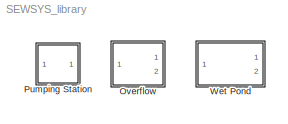
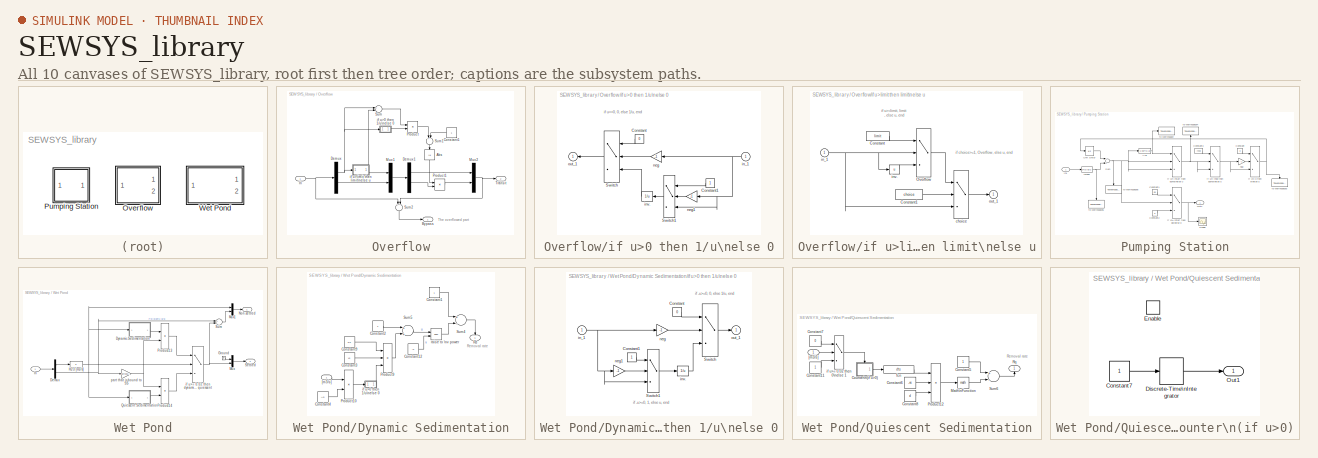
[diagram: thumbnail index - all 10 canvases of the model, root first then tree order]
MODEL SEWSYS_library
KIND library
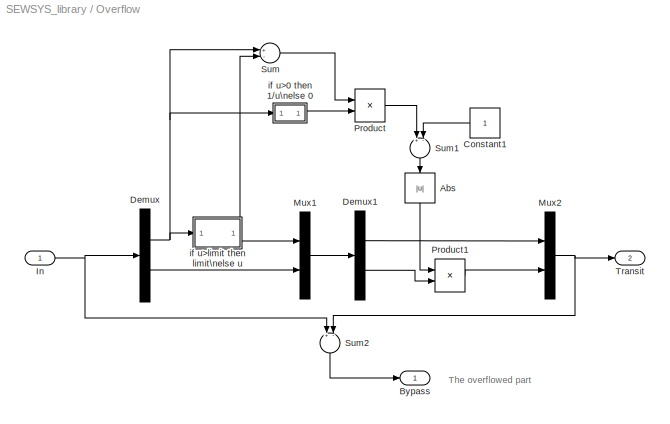
BLOCK [SubSystem] Overflow
  MaskCallbackString = |
  MaskDescription = Models an overflow
  MaskEnableString = on,on
  MaskHelp = To model an overflow:\nFirst make the overflow active by the checkbox. Then enter the Overflow limit, ie the discharge threshold for which the overflow starts diverting. The signal from the first outport contains the bypassed part, the second outport the transit part.
  MaskIconFrame = on
  MaskIconOpaque = on
  MaskIconRotate = none
  MaskIconUnits = autoscale
  MaskPromptString = Overflow active|Overflow limit [m3/s]
  MaskStyleString = checkbox,edit
  MaskTabNameString = ,
  MaskToolTipString = on,on
  MaskTunableValueString = on,on
  MaskType = Overflow
  MaskValueString = off|0
  MaskVarAliasString = ,
  MaskVariables = choice=@1;limit=@2;
  MaskVisibilityString = on,on
  MinAlgLoopOccurrences = off
  Ports = [1, 2]
  RTWSystemCode = Auto
  TreatAsAtomicUnit = off
BLOCK [Abs] Overflow/Abs
BLOCK [Outport] Overflow/Bypass
  IconDisplay = Port number
BLOCK [Constant] Overflow/Constant1
BLOCK [Demux] Overflow/Demux
  Outputs = [1 -1]
  Ports = [1, 2]
BLOCK [Demux] Overflow/Demux1
  Outputs = [1 -1]
  Ports = [1, 2]
BLOCK [Inport] Overflow/In
  IconDisplay = Port number
  LatchInput = off
  Port = 1
BLOCK [Mux] Overflow/Mux1
  DisplayOption = bar
  Inputs = 2
  Ports = [2, 1]
BLOCK [Mux] Overflow/Mux2
  DisplayOption = bar
  Inputs = 2
  Ports = [2, 1]
BLOCK [Product] Overflow/Product
  Ports = [2, 1]
  RndMeth = Floor
BLOCK [Product] Overflow/Product1
  Ports = [2, 1]
  RndMeth = Floor
BLOCK [Sum] Overflow/Sum
  Inputs = +-
  Ports = [2, 1]
BLOCK [Sum] Overflow/Sum1
  Inputs = +-
  Ports = [2, 1]
BLOCK [Sum] Overflow/Sum2
  Inputs = +-
  Ports = [2, 1]
BLOCK [Outport] Overflow/Transit
  IconDisplay = Port number
  Port = 2
BLOCK [SubSystem] Overflow/if u>0 then 1//u\nelse 0
  MaskDisplay = disp('1/u')
  MaskIconFrame = on
  MaskIconOpaque = on
  MaskIconRotate = none
  MaskIconUnits = autoscale
  MinAlgLoopOccurrences = off
  Ports = [1, 1]
  RTWSystemCode = Auto
  ShowPortLabels = off
  TreatAsAtomicUnit = off
BLOCK [Constant] Overflow/if u>0 then 1//u\nelse 0/Constant
  Value = 0
BLOCK [Constant] Overflow/if u>0 then 1//u\nelse 0/Constant1
BLOCK [Switch] Overflow/if u>0 then 1//u\nelse 0/Switch
BLOCK [Switch] Overflow/if u>0 then 1//u\nelse 0/Switch1
BLOCK [Inport] Overflow/if u>0 then 1//u\nelse 0/in_1
  IconDisplay = Port number
  LatchInput = off
  Port = 1
BLOCK [Fcn] Overflow/if u>0 then 1//u\nelse 0/inv.
  Expr = 1/u
BLOCK [Gain] Overflow/if u>0 then 1//u\nelse 0/neg
  Gain = -1
BLOCK [Gain] Overflow/if u>0 then 1//u\nelse 0/neg1
  Gain = -1
BLOCK [Outport] Overflow/if u>0 then 1//u\nelse 0/out_1
  IconDisplay = Port number
  InitialOutput = 0
BLOCK [SubSystem] Overflow/if u>limit then limit\nelse u
  MaskDisplay = disp('Overflow')
  MaskIconFrame = on
  MaskIconOpaque = on
  MaskIconRotate = none
  MaskIconUnits = autoscale
  MinAlgLoopOccurrences = off
  Ports = [1, 1]
  RTWSystemCode = Auto
  TreatAsAtomicUnit = off
BLOCK [Constant] Overflow/if u>limit then limit\nelse u/Constant
  Value = limit
BLOCK [Constant] Overflow/if u>limit then limit\nelse u/Constant1
  Value = choice
BLOCK [Switch] Overflow/if u>limit then limit\nelse u/Overflow
  Threshold = limit
BLOCK [Switch] Overflow/if u>limit then limit\nelse u/choice
  Threshold = 1
BLOCK [Inport] Overflow/if u>limit then limit\nelse u/in_1
  IconDisplay = Port number
  LatchInput = off
  Port = 1
BLOCK [Fcn] Overflow/if u>limit then limit\nelse u/inv.
  Expr = u
BLOCK [Outport] Overflow/if u>limit then limit\nelse u/out_1
  IconDisplay = Port number
  InitialOutput = 0
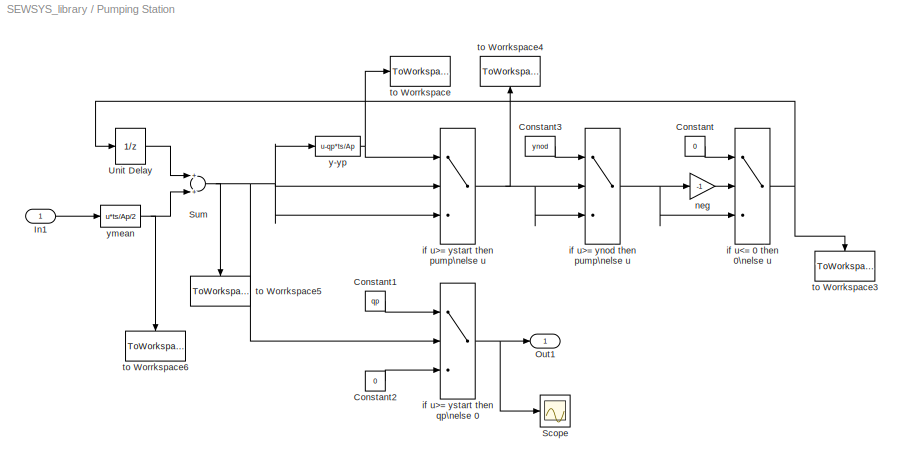
BLOCK [SubSystem] Pumping Station
  MaskCallbackString = ||||
  MaskDescription = Models a pumping station.
  MaskDisplay = plot([0 1 5 6], [0 0 4 4])
  MaskEnableString = on,on,on,on,on
  MaskHelp = Enter the parameters
  MaskIconFrame = on
  MaskIconOpaque = on
  MaskIconRotate = none
  MaskIconUnits = autoscale
  MaskPromptString = Pump Capacity [m³/s]|Pumping Pit Area [m²]|Start Level [m] (Stop Level is ±0 m)|Emergency Overflow Level [m]|Seconds per Timestep (DO NOT CHANGE THIS!)
  MaskStyleString = edit,edit,edit,edit,edit
  MaskTabNameString = ,,,,
  MaskToolTipString = on,on,on,on,on
  MaskTunableValueString = on,on,on,on,on
  MaskType = Pump
  MaskValueString = ||||sec_per_ts
  MaskVarAliasString = ,,,,
  MaskVariables = qp=@1;Ap=@2;ystart=@3;ynod=@4;ts=@5;
  MaskVisibilityString = on,on,on,on,on
  MinAlgLoopOccurrences = off
  Ports = [1, 1]
  RTWSystemCode = Auto
  TreatAsAtomicUnit = off
BLOCK [Constant] Pumping Station/Constant
  Value = 0
BLOCK [Constant] Pumping Station/Constant1
  Value = qp
BLOCK [Constant] Pumping Station/Constant2
  Value = 0
BLOCK [Constant] Pumping Station/Constant3
  Value = ynod
BLOCK [Inport] Pumping Station/In1
  IconDisplay = Port number
  LatchInput = off
  Port = 1
BLOCK [Outport] Pumping Station/Out1
  IconDisplay = Port number
BLOCK [Scope] Pumping Station/Scope
  DataFormat = StructureWithTime
  NumInputPorts = 1
  Ports = [1]
BLOCK [Sum] Pumping Station/Sum
  Ports = [2, 1]
BLOCK [UnitDelay] Pumping Station/Unit Delay
BLOCK [Switch] Pumping Station/if u<= 0 then 0\nelse u
BLOCK [Switch] Pumping Station/if u>= ynod then pump\nelse u
  Threshold = ynod
BLOCK [Switch] Pumping Station/if u>= ystart then pump\nelse u
  Threshold = ystart
BLOCK [Switch] Pumping Station/if u>= ystart then qp\nelse 0
  Threshold = ystart
BLOCK [Gain] Pumping Station/neg
  Gain = -1
BLOCK [ToWorkspace] Pumping Station/to Worrkspace
  MaxDataPoints = inf
  SampleTime = -1
  SaveFormat = Array
  VariableName = yprim
BLOCK [ToWorkspace] Pumping Station/to Worrkspace3
  MaxDataPoints = inf
  SampleTime = -1
  SaveFormat = Array
  VariableName = y
BLOCK [ToWorkspace] Pumping Station/to Worrkspace4
  MaxDataPoints = inf
  SampleTime = -1
  SaveFormat = Array
  VariableName = ytest
BLOCK [ToWorkspace] Pumping Station/to Worrkspace5
  MaxDataPoints = inf
  SampleTime = -1
  SaveFormat = Array
  VariableName = yin
BLOCK [ToWorkspace] Pumping Station/to Worrkspace6
  MaxDataPoints = inf
  SampleTime = -1
  SaveFormat = Array
  VariableName = ymean
BLOCK [Fcn] Pumping Station/y-yp
  Expr = u-qp*ts/Ap
BLOCK [Fcn] Pumping Station/ymean
  Expr = u*ts/Ap/2
BLOCK [SubSystem] Wet Pond
  MaskCallbackString = |||||
  MaskEnableString = on,on,on,on,on,off
  MaskIconFrame = on
  MaskIconOpaque = on
  MaskIconRotate = none
  MaskIconUnits = autoscale
  MaskInitialization = partboundSS=[ ;% uncertain values, calculated from measurements (Pettersson et al, 1999 p.870)\n   0.57      ;% P-tot\n   0.10      ;% Tot-N\n   0         ;% NH3/NH4-N\n   0         ;% NO3-N\n   0         ;% N2O-N\n   0         ;% SS\n   0.57      ;% BOD\n   0         ;% COD\n   0         ;% C-tot\n   0         ;% Phase index\n   0.43      ;% Cu\n   0.43      ;% Zn\n   0.71      ;% Pb\n   0.16    ...<+166ch>
  MaskPromptString = Pond Area [m2]|Average pond depth [m]|Turbulence constant, n=1 poor performance (variable inflow)|Average settling velocity [m/s]|Limit for dynamic settling [m3/s]|Seconds per Timestep (DO NOT CHANGE THIS!)
  MaskSelfModifiable = on
  MaskStyleString = edit,edit,edit,edit,edit,edit
  MaskTabNameString = ,,,,,
  MaskToolTipString = on,on,on,on,on,on
  MaskTunableValueString = on,on,on,on,on,on
  MaskType = Wet Pond
  MaskValueString = 0|0|1|1.4977e-004|0.02|sec_per_ts
  MaskVarAliasString = ,,,,,
  MaskVariables = Ap=@1;d=@2;n=@3;vs=@4;q_threshold=@5;ts=@6;
  MaskVisibilityString = on,on,on,on,on,on
  MinAlgLoopOccurrences = off
  Ports = [1, 2]
  RTWSystemCode = Auto
  TreatAsAtomicUnit = off
BLOCK [Demux] Wet Pond/Demux
  Outputs = [1 -1]
  Ports = [1, 2]
BLOCK [SubSystem] Wet Pond/Dynamic Sedimentation
  MinAlgLoopOccurrences = off
  Ports = [1, 1]
  RTWSystemCode = Auto
  TreatAsAtomicUnit = off
BLOCK [Constant] Wet Pond/Dynamic Sedimentation/Constant1
BLOCK [Constant] Wet Pond/Dynamic Sedimentation/Constant12
  Value = -n
BLOCK [Constant] Wet Pond/Dynamic Sedimentation/Constant2
BLOCK [Constant] Wet Pond/Dynamic Sedimentation/Constant3
  Value = vs
BLOCK [Constant] Wet Pond/Dynamic Sedimentation/Constant4
  Value = Ap
BLOCK [Constant] Wet Pond/Dynamic Sedimentation/Constant9
  Value = 1/n
BLOCK [Product] Wet Pond/Dynamic Sedimentation/Product10
  Inputs = */
  Ports = [2, 1]
  RndMeth = Floor
BLOCK [Product] Wet Pond/Dynamic Sedimentation/Product9
  Inputs = 3
  Ports = [3, 1]
  RndMeth = Floor
BLOCK [Outport] Wet Pond/Dynamic Sedimentation/Rd
  IconDisplay = Port number
BLOCK [Sum] Wet Pond/Dynamic Sedimentation/Sum4
  Inputs = +-
  Ports = [2, 1]
BLOCK [Sum] Wet Pond/Dynamic Sedimentation/Sum5
  Ports = [2, 1]
BLOCK [Inport] Wet Pond/Dynamic Sedimentation/[m3//s]
  IconDisplay = Port number
  LatchInput = off
  Port = 1
BLOCK [SubSystem] Wet Pond/Dynamic Sedimentation/if u>0 then 1//u\nelse 0
  MaskDisplay = disp('1/u')
  MaskIconFrame = on
  MaskIconOpaque = on
  MaskIconRotate = none
  MaskIconUnits = autoscale
  MinAlgLoopOccurrences = off
  Ports = [1, 1]
  RTWSystemCode = Auto
  ShowPortLabels = off
  TreatAsAtomicUnit = off
BLOCK [Constant] Wet Pond/Dynamic Sedimentation/if u>0 then 1//u\nelse 0/Constant
  Value = 0
BLOCK [Constant] Wet Pond/Dynamic Sedimentation/if u>0 then 1//u\nelse 0/Constant1
BLOCK [Switch] Wet Pond/Dynamic Sedimentation/if u>0 then 1//u\nelse 0/Switch
BLOCK [Switch] Wet Pond/Dynamic Sedimentation/if u>0 then 1//u\nelse 0/Switch1
BLOCK [Inport] Wet Pond/Dynamic Sedimentation/if u>0 then 1//u\nelse 0/in_1
  IconDisplay = Port number
  LatchInput = off
  Port = 1
BLOCK [Fcn] Wet Pond/Dynamic Sedimentation/if u>0 then 1//u\nelse 0/inv.
  Expr = 1/u
BLOCK [Gain] Wet Pond/Dynamic Sedimentation/if u>0 then 1//u\nelse 0/neg
  Gain = -1
BLOCK [Gain] Wet Pond/Dynamic Sedimentation/if u>0 then 1//u\nelse 0/neg1
  Gain = -1
BLOCK [Outport] Wet Pond/Dynamic Sedimentation/if u>0 then 1//u\nelse 0/out_1
  IconDisplay = Port number
  InitialOutput = 0
BLOCK [Math] Wet Pond/Dynamic Sedimentation/raise to \nv power
  Operator = pow
  Ports = [2, 1]
BLOCK [Ground] Wet Pond/Ground
BLOCK [Fcn] Wet Pond/H2O [m3//s]
  Expr = u
BLOCK [Inport] Wet Pond/In
  IconDisplay = Port number
  LatchInput = off
  Port = 1
BLOCK [Mux] Wet Pond/Mux
  DisplayOption = bar
  Inputs = 2
  Ports = [2, 1]
BLOCK [Mux] Wet Pond/Mux1
  DisplayOption = bar
  Inputs = 2
  Ports = [2, 1]
BLOCK [Outport] Wet Pond/Non-settled
  IconDisplay = Port number
BLOCK [Product] Wet Pond/Product13
  Ports = [2, 1]
  RndMeth = Floor
BLOCK [Product] Wet Pond/Product14
  Ports = [2, 1]
  RndMeth = Floor
BLOCK [SubSystem] Wet Pond/Quiescent Sedimentation
  MinAlgLoopOccurrences = off
  Ports = [1, 1]
  RTWSystemCode = Auto
  TreatAsAtomicUnit = off
BLOCK [Constant] Wet Pond/Quiescent Sedimentation/Constant11
BLOCK [Constant] Wet Pond/Quiescent Sedimentation/Constant5
BLOCK [Constant] Wet Pond/Quiescent Sedimentation/Constant6
  Value = -vs
BLOCK [Constant] Wet Pond/Quiescent Sedimentation/Constant7
  Value = 0
BLOCK [Constant] Wet Pond/Quiescent Sedimentation/Constant8
  Value = d
BLOCK [SubSystem] Wet Pond/Quiescent Sedimentation/Counter\n(if u>0)
  MinAlgLoopOccurrences = off
  Ports = [0, 1, 1]
  RTWSystemCode = Auto
  TreatAsAtomicUnit = on
BLOCK [Constant] Wet Pond/Quiescent Sedimentation/Counter\n(if u>0)/Constant7
BLOCK [DiscreteIntegrator] Wet Pond/Quiescent Sedimentation/Counter\n(if u>0)/Discrete-Time\nIntegrator
  ExternalReset = none
  ICPrevOutput = DiscIntNeverNeededParam
  ICPrevScaledInput = DiscIntNeverNeededParam
  InitialCondition = 1
  InitialConditionSource = internal
  IntegratorMethod = Integration: Forward Euler
  Ports = [1, 1]
BLOCK [EnablePort] Wet Pond/Quiescent Sedimentation/Counter\n(if u>0)/Enable
  Ports = []
  StatesWhenEnabling = reset
BLOCK [Outport] Wet Pond/Quiescent Sedimentation/Counter\n(if u>0)/Out1
  IconDisplay = Port number
  InitialOutput = 0
BLOCK [Math] Wet Pond/Quiescent Sedimentation/Math\nFunction
  Ports = [1, 1]
BLOCK [Product] Wet Pond/Quiescent Sedimentation/Product12
  Inputs = **/
  Ports = [3, 1]
  RndMeth = Floor
BLOCK [Outport] Wet Pond/Quiescent Sedimentation/Rq
  IconDisplay = Port number
BLOCK [Sum] Wet Pond/Quiescent Sedimentation/Sum6
  Inputs = +-
  Ports = [2, 1]
BLOCK [Inport] Wet Pond/Quiescent Sedimentation/[m3//s]
  IconDisplay = Port number
  LatchInput = off
  Port = 1
BLOCK [Fcn] Wet Pond/Quiescent Sedimentation/fcn
  Expr = u*ts
BLOCK [Switch] Wet Pond/Quiescent Sedimentation/if u>= 0.02 then 0\nelse 1
  Threshold = q_threshold
BLOCK [Outport] Wet Pond/Settled
  IconDisplay = Port number
  Port = 2
BLOCK [Sum] Wet Pond/Sum
  Inputs = +-
  Ports = [2, 1]
BLOCK [Switch] Wet Pond/if u>= 0.02 then dynamic\nelse quiescent
  Threshold = q_threshold
BLOCK [Gain] Wet Pond/part that is bound to SS
  Gain = partboundSS
ANNOTATION Overflow: The overflowed part
ANNOTATION Overflow/if u>0 then 1//u\nelse 0: if u<=0, 0, else 1/u, end
ANNOTATION Overflow/if u>limit then limit\nelse u: if choice>=1, Overflow, else u, end
ANNOTATION Overflow/if u>limit then limit\nelse u: if u>=limit, limit\n, else u, end
ANNOTATION Wet Pond/Dynamic Sedimentation: Removal rate
ANNOTATION Wet Pond/Dynamic Sedimentation/if u>0 then 1//u\nelse 0: if -u>=0, 0, else 1/u, end
ANNOTATION Wet Pond/Dynamic Sedimentation/if u>0 then 1//u\nelse 0: if -u>=0, 1, else u, end
ANNOTATION Wet Pond/Quiescent Sedimentation: Removal rate
LINE Overflow/Abs:1 -> Overflow/Product1:1
LINE Overflow/Constant1:1 -> Overflow/Sum1:2
LINE Overflow/Demux1:1 -> Overflow/Mux2:1
LINE Overflow/Demux1:2 -> Overflow/Product1:2
NET Overflow/Demux:1 -> Overflow/Sum:1, Overflow/if u>0 then 1//u\nelse 0:1, Overflow/if u>limit then limit\nelse u:1
LINE Overflow/Demux:2 -> Overflow/Mux1:2
NET Overflow/In:1 -> Overflow/Demux:1, Overflow/Sum2:1
LINE Overflow/Mux1:1 -> Overflow/Demux1:1
NET Overflow/Mux2:1 -> Overflow/Sum2:2, Overflow/Transit:1
LINE Overflow/Product1:1 -> Overflow/Mux2:2
LINE Overflow/Product:1 -> Overflow/Sum1:1
LINE Overflow/Sum1:1 -> Overflow/Abs:1
LINE Overflow/Sum2:1 -> Overflow/Bypass:1
LINE Overflow/Sum:1 -> Overflow/Product:1
LINE Overflow/if u>0 then 1//u\nelse 0/Constant1:1 -> Overflow/if u>0 then 1//u\nelse 0/Switch1:1
LINE Overflow/if u>0 then 1//u\nelse 0/Constant:1 -> Overflow/if u>0 then 1//u\nelse 0/Switch:1
LINE Overflow/if u>0 then 1//u\nelse 0/Switch1:1 -> Overflow/if u>0 then 1//u\nelse 0/inv.:1
LINE Overflow/if u>0 then 1//u\nelse 0/Switch:1 -> Overflow/if u>0 then 1//u\nelse 0/out_1:1
NET Overflow/if u>0 then 1//u\nelse 0/in_1:1 -> Overflow/if u>0 then 1//u\nelse 0/Switch1:3, Overflow/if u>0 then 1//u\nelse 0/neg1:1, Overflow/if u>0 then 1//u\nelse 0/neg:1
LINE Overflow/if u>0 then 1//u\nelse 0/inv.:1 -> Overflow/if u>0 then 1//u\nelse 0/Switch:3
LINE Overflow/if u>0 then 1//u\nelse 0/neg1:1 -> Overflow/if u>0 then 1//u\nelse 0/Switch1:2
LINE Overflow/if u>0 then 1//u\nelse 0/neg:1 -> Overflow/if u>0 then 1//u\nelse 0/Switch:2
LINE Overflow/if u>0 then 1//u\nelse 0:1 -> Overflow/Product:2
LINE Overflow/if u>limit then limit\nelse u/Constant1:1 -> Overflow/if u>limit then limit\nelse u/choice:2
LINE Overflow/if u>limit then limit\nelse u/Constant:1 -> Overflow/if u>limit then limit\nelse u/Overflow:1
LINE Overflow/if u>limit then limit\nelse u/Overflow:1 -> Overflow/if u>limit then limit\nelse u/choice:1
LINE Overflow/if u>limit then limit\nelse u/choice:1 -> Overflow/if u>limit then limit\nelse u/out_1:1
NET Overflow/if u>limit then limit\nelse u/in_1:1 -> Overflow/if u>limit then limit\nelse u/Overflow:2, Overflow/if u>limit then limit\nelse u/choice:3, Overflow/if u>limit then limit\nelse u/inv.:1
LINE Overflow/if u>limit then limit\nelse u/inv.:1 -> Overflow/if u>limit then limit\nelse u/Overflow:3
NET Overflow/if u>limit then limit\nelse u:1 -> Overflow/Mux1:1, Overflow/Sum:2
LINE Pumping Station/Constant1:1 -> Pumping Station/if u>= ystart then qp\nelse 0:1
LINE Pumping Station/Constant2:1 -> Pumping Station/if u>= ystart then qp\nelse 0:3
LINE Pumping Station/Constant3:1 -> Pumping Station/if u>= ynod then pump\nelse u:1
LINE Pumping Station/Constant:1 -> Pumping Station/if u<= 0 then 0\nelse u:1
LINE Pumping Station/In1:1 -> Pumping Station/ymean:1
NET Pumping Station/Sum:1 -> Pumping Station/if u>= ystart then pump\nelse u:2, Pumping Station/if u>= ystart then pump\nelse u:3, Pumping Station/if u>= ystart then qp\nelse 0:2, Pumping Station/to Worrkspace5:1, Pumping Station/y-yp:1
LINE Pumping Station/Unit Delay:1 -> Pumping Station/Sum:1
NET Pumping Station/if u<= 0 then 0\nelse u:1 -> Pumping Station/Unit Delay:1, Pumping Station/to Worrkspace3:1
NET Pumping Station/if u>= ynod then pump\nelse u:1 -> Pumping Station/if u<= 0 then 0\nelse u:3, Pumping Station/neg:1
NET Pumping Station/if u>= ystart then pump\nelse u:1 -> Pumping Station/if u>= ynod then pump\nelse u:2, Pumping Station/if u>= ynod then pump\nelse u:3, Pumping Station/to Worrkspace4:1
NET Pumping Station/if u>= ystart then qp\nelse 0:1 -> Pumping Station/Out1:1, Pumping Station/Scope:1
LINE Pumping Station/neg:1 -> Pumping Station/if u<= 0 then 0\nelse u:2
NET Pumping Station/y-yp:1 -> Pumping Station/if u>= ystart then pump\nelse u:1, Pumping Station/to Worrkspace:1
NET Pumping Station/ymean:1 -> Pumping Station/Sum:2, Pumping Station/to Worrkspace6:1
LINE Wet Pond/Demux:1 -> Wet Pond/H2O [m3//s]:1
NET Wet Pond/Demux:2 -> Wet Pond/Sum:1, Wet Pond/part that is bound to SS:1
LINE Wet Pond/Dynamic Sedimentation/Constant12:1 -> Wet Pond/Dynamic Sedimentation/raise to \nv power:2
LINE Wet Pond/Dynamic Sedimentation/Constant1:1 -> Wet Pond/Dynamic Sedimentation/Sum4:1
LINE Wet Pond/Dynamic Sedimentation/Constant2:1 -> Wet Pond/Dynamic Sedimentation/Sum5:1
LINE Wet Pond/Dynamic Sedimentation/Constant3:1 -> Wet Pond/Dynamic Sedimentation/Product9:2
LINE Wet Pond/Dynamic Sedimentation/Constant4:1 -> Wet Pond/Dynamic Sedimentation/Product10:2
LINE Wet Pond/Dynamic Sedimentation/Constant9:1 -> Wet Pond/Dynamic Sedimentation/Product9:1
LINE Wet Pond/Dynamic Sedimentation/Product10:1 -> Wet Pond/Dynamic Sedimentation/if u>0 then 1//u\nelse 0:1
LINE Wet Pond/Dynamic Sedimentation/Product9:1 -> Wet Pond/Dynamic Sedimentation/Sum5:2
LINE Wet Pond/Dynamic Sedimentation/Sum4:1 -> Wet Pond/Dynamic Sedimentation/Rd:1
LINE Wet Pond/Dynamic Sedimentation/Sum5:1 -> Wet Pond/Dynamic Sedimentation/raise to \nv power:1
LINE Wet Pond/Dynamic Sedimentation/[m3//s]:1 -> Wet Pond/Dynamic Sedimentation/Product10:1
LINE Wet Pond/Dynamic Sedimentation/if u>0 then 1//u\nelse 0/Constant1:1 -> Wet Pond/Dynamic Sedimentation/if u>0 then 1//u\nelse 0/Switch1:1
LINE Wet Pond/Dynamic Sedimentation/if u>0 then 1//u\nelse 0/Constant:1 -> Wet Pond/Dynamic Sedimentation/if u>0 then 1//u\nelse 0/Switch:1
LINE Wet Pond/Dynamic Sedimentation/if u>0 then 1//u\nelse 0/Switch1:1 -> Wet Pond/Dynamic Sedimentation/if u>0 then 1//u\nelse 0/inv.:1
LINE Wet Pond/Dynamic Sedimentation/if u>0 then 1//u\nelse 0/Switch:1 -> Wet Pond/Dynamic Sedimentation/if u>0 then 1//u\nelse 0/out_1:1
NET Wet Pond/Dynamic Sedimentation/if u>0 then 1//u\nelse 0/in_1:1 -> Wet Pond/Dynamic Sedimentation/if u>0 then 1//u\nelse 0/Switch1:3, Wet Pond/Dynamic Sedimentation/if u>0 then 1//u\nelse 0/neg1:1, Wet Pond/Dynamic Sedimentation/if u>0 then 1//u\nelse 0/neg:1
LINE Wet Pond/Dynamic Sedimentation/if u>0 then 1//u\nelse 0/inv.:1 -> Wet Pond/Dynamic Sedimentation/if u>0 then 1//u\nelse 0/Switch:3
LINE Wet Pond/Dynamic Sedimentation/if u>0 then 1//u\nelse 0/neg1:1 -> Wet Pond/Dynamic Sedimentation/if u>0 then 1//u\nelse 0/Switch1:2
LINE Wet Pond/Dynamic Sedimentation/if u>0 then 1//u\nelse 0/neg:1 -> Wet Pond/Dynamic Sedimentation/if u>0 then 1//u\nelse 0/Switch:2
LINE Wet Pond/Dynamic Sedimentation/if u>0 then 1//u\nelse 0:1 -> Wet Pond/Dynamic Sedimentation/Product9:3
LINE Wet Pond/Dynamic Sedimentation/raise to \nv power:1 -> Wet Pond/Dynamic Sedimentation/Sum4:2
LINE Wet Pond/Dynamic Sedimentation:1 -> Wet Pond/Product13:1
LINE Wet Pond/Ground:1 -> Wet Pond/Mux:1
NET Wet Pond/H2O [m3//s]:1 -> Wet Pond/Dynamic Sedimentation:1, Wet Pond/Mux1:1, Wet Pond/Quiescent Sedimentation:1, Wet Pond/if u>= 0.02 then dynamic\nelse quiescent:2
LINE Wet Pond/In:1 -> Wet Pond/Demux:1
LINE Wet Pond/Mux1:1 -> Wet Pond/Non-settled:1
LINE Wet Pond/Mux:1 -> Wet Pond/Settled:1
LINE Wet Pond/Product13:1 -> Wet Pond/if u>= 0.02 then dynamic\nelse quiescent:1
LINE Wet Pond/Product14:1 -> Wet Pond/if u>= 0.02 then dynamic\nelse quiescent:3
LINE Wet Pond/Quiescent Sedimentation/Constant11:1 -> Wet Pond/Quiescent Sedimentation/if u>= 0.02 then 0\nelse 1:3
LINE Wet Pond/Quiescent Sedimentation/Constant5:1 -> Wet Pond/Quiescent Sedimentation/Sum6:1
LINE Wet Pond/Quiescent Sedimentation/Constant6:1 -> Wet Pond/Quiescent Sedimentation/Product12:2
LINE Wet Pond/Quiescent Sedimentation/Constant7:1 -> Wet Pond/Quiescent Sedimentation/if u>= 0.02 then 0\nelse 1:1
LINE Wet Pond/Quiescent Sedimentation/Constant8:1 -> Wet Pond/Quiescent Sedimentation/Product12:3
LINE Wet Pond/Quiescent Sedimentation/Counter\n(if u>0)/Constant7:1 -> Wet Pond/Quiescent Sedimentation/Counter\n(if u>0)/Discrete-Time\nIntegrator:1
LINE Wet Pond/Quiescent Sedimentation/Counter\n(if u>0)/Discrete-Time\nIntegrator:1 -> Wet Pond/Quiescent Sedimentation/Counter\n(if u>0)/Out1:1
LINE Wet Pond/Quiescent Sedimentation/Counter\n(if u>0):1 -> Wet Pond/Quiescent Sedimentation/fcn:1
LINE Wet Pond/Quiescent Sedimentation/Math\nFunction:1 -> Wet Pond/Quiescent Sedimentation/Sum6:2
LINE Wet Pond/Quiescent Sedimentation/Product12:1 -> Wet Pond/Quiescent Sedimentation/Math\nFunction:1
LINE Wet Pond/Quiescent Sedimentation/Sum6:1 -> Wet Pond/Quiescent Sedimentation/Rq:1
LINE Wet Pond/Quiescent Sedimentation/[m3//s]:1 -> Wet Pond/Quiescent Sedimentation/if u>= 0.02 then 0\nelse 1:2
LINE Wet Pond/Quiescent Sedimentation/fcn:1 -> Wet Pond/Quiescent Sedimentation/Product12:1
LINE Wet Pond/Quiescent Sedimentation/if u>= 0.02 then 0\nelse 1:1 -> Wet Pond/Quiescent Sedimentation/Counter\n(if u>0):enable
LINE Wet Pond/Quiescent Sedimentation:1 -> Wet Pond/Product14:2
LINE Wet Pond/Sum:1 -> Wet Pond/Mux1:2
NET Wet Pond/if u>= 0.02 then dynamic\nelse quiescent:1 -> Wet Pond/Mux:2, Wet Pond/Sum:2
NET Wet Pond/part that is bound to SS:1 -> Wet Pond/Product13:2, Wet Pond/Product14:1
note: NET lines group one-source signal fan-out (src -> all destinations, sorted); 1:1 wires keep LINE
